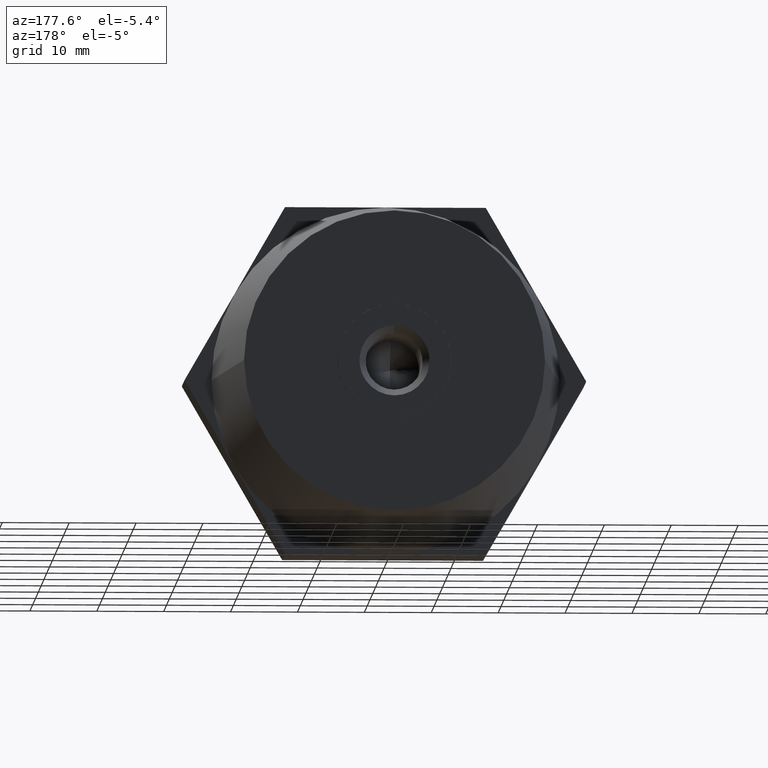
[diagram: clean part render]
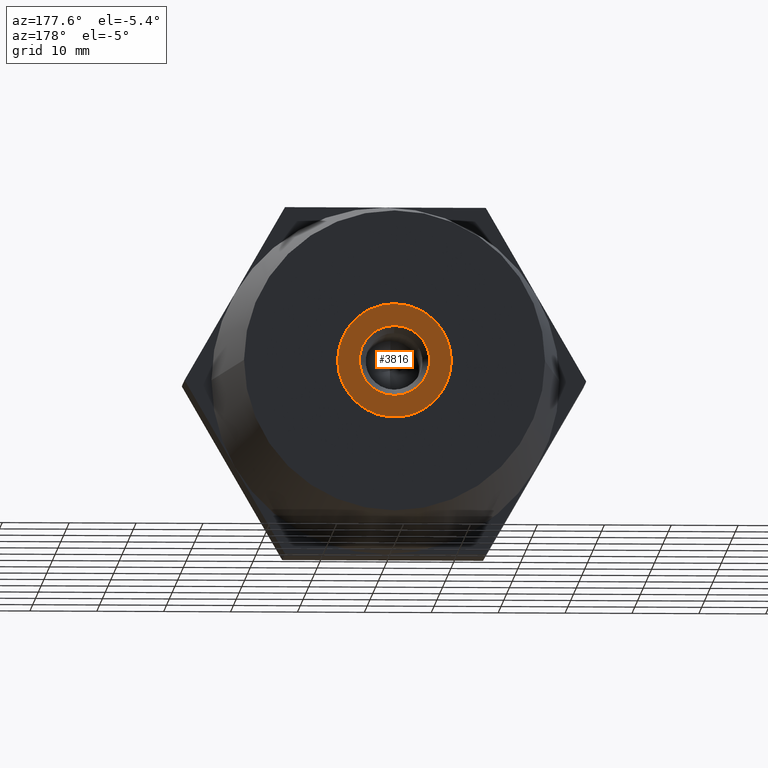
[diagram: same view with one face highlighted and labeled with its STEP entity id]
A machine part, auxiliary view. The second image highlights one B-rep face of the part: STEP entity #3816.
In plain terms, the highlighted planar face has unit normal (0, 1, -0).
Its self-contained STEP definition (entity closure, byte-faithful):
#24 = AXIS2_PLACEMENT_3D ( 'NONE', #3193, #2291, #2603 ) ;
#105 = EDGE_CURVE ( 'NONE', #2556, #3365, #3305, .T. ) ;
#128 = EDGE_LOOP ( 'NONE', ( #1488, #2135 ) ) ;
#166 = CIRCLE ( 'NONE', #2212, 8.500000000000000000 ) ;
#257 = EDGE_CURVE ( 'NONE', #3364, #1979, #2009, .T. ) ;
#270 = AXIS2_PLACEMENT_3D ( 'NONE', #854, #2407, #3337 ) ;
#339 = DIRECTION ( 'NONE',  ( 0.0000000000000000000, 0.0000000000000000000, 1.000000000000000000 ) ) ;
#435 = ORIENTED_EDGE ( 'NONE', *, *, #3614, .F. ) ;
#455 = CARTESIAN_POINT ( 'NONE',  ( 4.250000000000000000, 17.00000000000000000, 7.361215932167730200 ) ) ;
#478 = AXIS2_PLACEMENT_3D ( 'NONE', #1574, #1850, #1207 ) ;
#579 = CARTESIAN_POINT ( 'NONE',  ( -4.250000000000000000, 17.00000000000000000, -7.361215932167730200 ) ) ;
#585 = CARTESIAN_POINT ( 'NONE',  ( 0.0000000000000000000, 17.00000000000000000, 0.0000000000000000000 ) ) ;
#705 = AXIS2_PLACEMENT_3D ( 'NONE', #1752, #1796, #2390 ) ;
#721 = CARTESIAN_POINT ( 'NONE',  ( 0.0000000000000000000, 17.00000000000000000, 0.0000000000000000000 ) ) ;
#724 = ORIENTED_EDGE ( 'NONE', *, *, #105, .F. ) ;
#779 = EDGE_CURVE ( 'NONE', #2792, #3550, #166, .T. ) ;
#854 = CARTESIAN_POINT ( 'NONE',  ( 0.0000000000000000000, 17.00000000000000000, 0.0000000000000000000 ) ) ;
#875 = PLANE ( 'NONE',  #705 ) ;
#940 = AXIS2_PLACEMENT_3D ( 'NONE', #1228, #2414, #3913 ) ;
#1004 = EDGE_CURVE ( 'NONE', #2363, #3498, #1426, .T. ) ;
#1073 = FACE_BOUND ( 'NONE', #128, .T. ) ;
#1081 = CIRCLE ( 'NONE', #478, 8.500000000000000000 ) ;
#1090 = EDGE_CURVE ( 'NONE', #3365, #2792, #1081, .T. ) ;
#1179 = CIRCLE ( 'NONE', #2276, 8.500000000000000000 ) ;
#1207 = DIRECTION ( 'NONE',  ( 3.552713678800500900E-015, 0.0000000000000000000, 1.000000000000000000 ) ) ;
#1228 = CARTESIAN_POINT ( 'NONE',  ( 0.0000000000000000000, 17.00000000000000000, 0.0000000000000000000 ) ) ;
#1338 = DIRECTION ( 'NONE',  ( 0.0000000000000000000, 0.0000000000000000000, 1.000000000000000000 ) ) ;
#1426 = CIRCLE ( 'NONE', #270, 5.250000000000000000 ) ;
#1439 = DIRECTION ( 'NONE',  ( -0.0000000000000000000, -1.000000000000000000, -0.0000000000000000000 ) ) ;
#1485 = EDGE_CURVE ( 'NONE', #3550, #2474, #1179, .T. ) ;
#1488 = ORIENTED_EDGE ( 'NONE', *, *, #2477, .F. ) ;
#1547 = CARTESIAN_POINT ( 'NONE',  ( 4.250000000000000000, 17.00000000000000000, -7.361215932167730200 ) ) ;
#1562 = CARTESIAN_POINT ( 'NONE',  ( 0.0000000000000000000, 17.00000000000000000, 5.250000000000000000 ) ) ;
#1574 = CARTESIAN_POINT ( 'NONE',  ( 0.0000000000000000000, 17.00000000000000000, 0.0000000000000000000 ) ) ;
#1752 = CARTESIAN_POINT ( 'NONE',  ( 0.0000000000000000000, 17.00000000000000000, 0.0000000000000000000 ) ) ;
#1796 = DIRECTION ( 'NONE',  ( 0.0000000000000000000, 1.000000000000000000, 0.0000000000000000000 ) ) ;
#1849 = EDGE_LOOP ( 'NONE', ( #2835, #2116, #2080, #724, #2400, #2038, #435 ) ) ;
#1850 = DIRECTION ( 'NONE',  ( -0.0000000000000000000, -1.000000000000000000, -0.0000000000000000000 ) ) ;
#1851 = CIRCLE ( 'NONE', #2669, 5.250000000000000000 ) ;
#1979 = VERTEX_POINT ( 'NONE', #2240 ) ;
#1992 = DIRECTION ( 'NONE',  ( -0.0000000000000000000, -1.000000000000000000, -0.0000000000000000000 ) ) ;
#2000 = AXIS2_PLACEMENT_3D ( 'NONE', #585, #3625, #2744 ) ;
#2009 = CIRCLE ( 'NONE', #940, 8.500000000000000000 ) ;
#2038 = ORIENTED_EDGE ( 'NONE', *, *, #257, .F. ) ;
#2080 = ORIENTED_EDGE ( 'NONE', *, *, #1090, .F. ) ;
#2116 = ORIENTED_EDGE ( 'NONE', *, *, #779, .F. ) ;
#2135 = ORIENTED_EDGE ( 'NONE', *, *, #1004, .F. ) ;
#2212 = AXIS2_PLACEMENT_3D ( 'NONE', #2594, #1992, #1338 ) ;
#2240 = CARTESIAN_POINT ( 'NONE',  ( 0.0000000000000000000, 17.00000000000000000, -8.500000000000001800 ) ) ;
#2276 = AXIS2_PLACEMENT_3D ( 'NONE', #3846, #1439, #2999 ) ;
#2291 = DIRECTION ( 'NONE',  ( -0.0000000000000000000, -1.000000000000000000, -0.0000000000000000000 ) ) ;
#2363 = VERTEX_POINT ( 'NONE', #3458 ) ;
#2390 = DIRECTION ( 'NONE',  ( 0.0000000000000000000, 0.0000000000000000000, 1.000000000000000000 ) ) ;
#2400 = ORIENTED_EDGE ( 'NONE', *, *, #3970, .F. ) ;
#2407 = DIRECTION ( 'NONE',  ( 0.0000000000000000000, 1.000000000000000000, 0.0000000000000000000 ) ) ;
#2414 = DIRECTION ( 'NONE',  ( -0.0000000000000000000, -1.000000000000000000, -0.0000000000000000000 ) ) ;
#2474 = VERTEX_POINT ( 'NONE', #3392 ) ;
#2477 = EDGE_CURVE ( 'NONE', #3498, #2363, #1851, .T. ) ;
#2556 = VERTEX_POINT ( 'NONE', #1547 ) ;
#2560 = DIRECTION ( 'NONE',  ( -0.0000000000000000000, -1.000000000000000000, -0.0000000000000000000 ) ) ;
#2588 = DIRECTION ( 'NONE',  ( 0.0000000000000000000, 0.0000000000000000000, 1.000000000000000000 ) ) ;
#2594 = CARTESIAN_POINT ( 'NONE',  ( 0.0000000000000000000, 17.00000000000000000, 0.0000000000000000000 ) ) ;
#2603 = DIRECTION ( 'NONE',  ( -1.776356839400250500E-015, 0.0000000000000000000, 1.000000000000000000 ) ) ;
#2669 = AXIS2_PLACEMENT_3D ( 'NONE', #2757, #2783, #339 ) ;
#2744 = DIRECTION ( 'NONE',  ( 0.0000000000000000000, 0.0000000000000000000, 1.000000000000000000 ) ) ;
#2757 = CARTESIAN_POINT ( 'NONE',  ( 0.0000000000000000000, 17.00000000000000000, 0.0000000000000000000 ) ) ;
#2783 = DIRECTION ( 'NONE',  ( 0.0000000000000000000, 1.000000000000000000, 0.0000000000000000000 ) ) ;
#2792 = VERTEX_POINT ( 'NONE', #455 ) ;
#2827 = AXIS2_PLACEMENT_3D ( 'NONE', #721, #2560, #2588 ) ;
#2835 = ORIENTED_EDGE ( 'NONE', *, *, #1485, .F. ) ;
#2860 = CIRCLE ( 'NONE', #2827, 8.500000000000000000 ) ;
#2999 = DIRECTION ( 'NONE',  ( 0.0000000000000000000, 0.0000000000000000000, 1.000000000000000000 ) ) ;
#3137 = CIRCLE ( 'NONE', #2000, 8.500000000000000000 ) ;
#3193 = CARTESIAN_POINT ( 'NONE',  ( 0.0000000000000000000, 17.00000000000000000, 0.0000000000000000000 ) ) ;
#3283 = FACE_OUTER_BOUND ( 'NONE', #1849, .T. ) ;
#3305 = CIRCLE ( 'NONE', #24, 8.500000000000000000 ) ;
#3337 = DIRECTION ( 'NONE',  ( 0.0000000000000000000, 0.0000000000000000000, 1.000000000000000000 ) ) ;
#3364 = VERTEX_POINT ( 'NONE', #579 ) ;
#3365 = VERTEX_POINT ( 'NONE', #3930 ) ;
#3392 = CARTESIAN_POINT ( 'NONE',  ( -8.500000000000000000, 17.00000000000000000, 0.0000000000000000000 ) ) ;
#3458 = CARTESIAN_POINT ( 'NONE',  ( 6.429395695523604200E-016, 17.00000000000000000, -5.250000000000000000 ) ) ;
#3498 = VERTEX_POINT ( 'NONE', #1562 ) ;
#3550 = VERTEX_POINT ( 'NONE', #3971 ) ;
#3614 = EDGE_CURVE ( 'NONE', #2474, #3364, #2860, .T. ) ;
#3625 = DIRECTION ( 'NONE',  ( -0.0000000000000000000, -1.000000000000000000, -0.0000000000000000000 ) ) ;
#3816 = ADVANCED_FACE ( 'NONE', ( #3283, #1073 ), #875, .T. ) ;
#3846 = CARTESIAN_POINT ( 'NONE',  ( 0.0000000000000000000, 17.00000000000000000, 0.0000000000000000000 ) ) ;
#3913 = DIRECTION ( 'NONE',  ( 2.664535259100376100E-015, 0.0000000000000000000, 1.000000000000000000 ) ) ;
#3930 = CARTESIAN_POINT ( 'NONE',  ( 8.500000000000000000, 17.00000000000000000, -3.004629197474319600E-015 ) ) ;
#3970 = EDGE_CURVE ( 'NONE', #1979, #2556, #3137, .T. ) ;
#3971 = CARTESIAN_POINT ( 'NONE',  ( -4.250000000000000000, 17.00000000000000000, 7.361215932167730200 ) ) ;